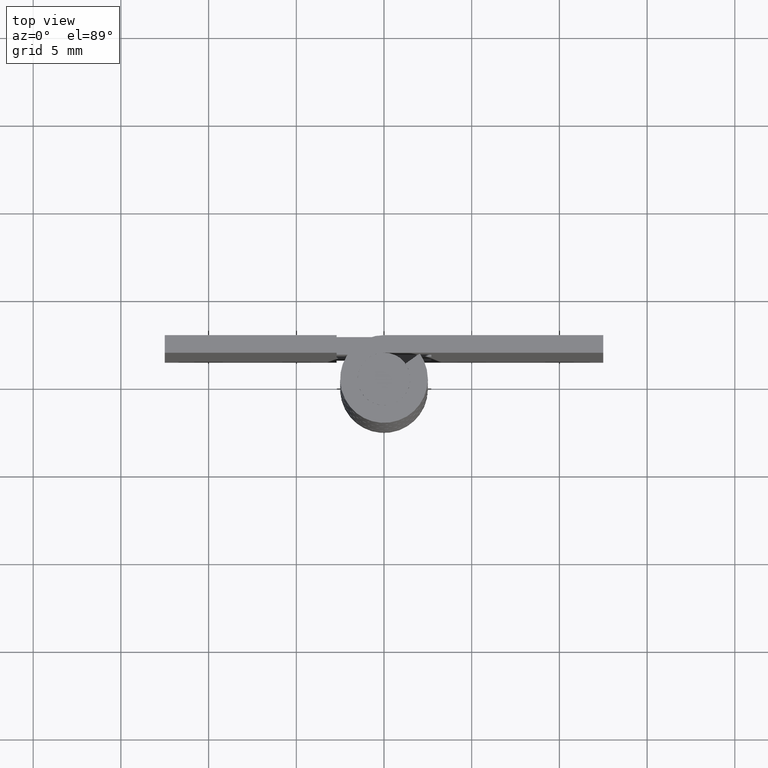
[diagram: clean part render]
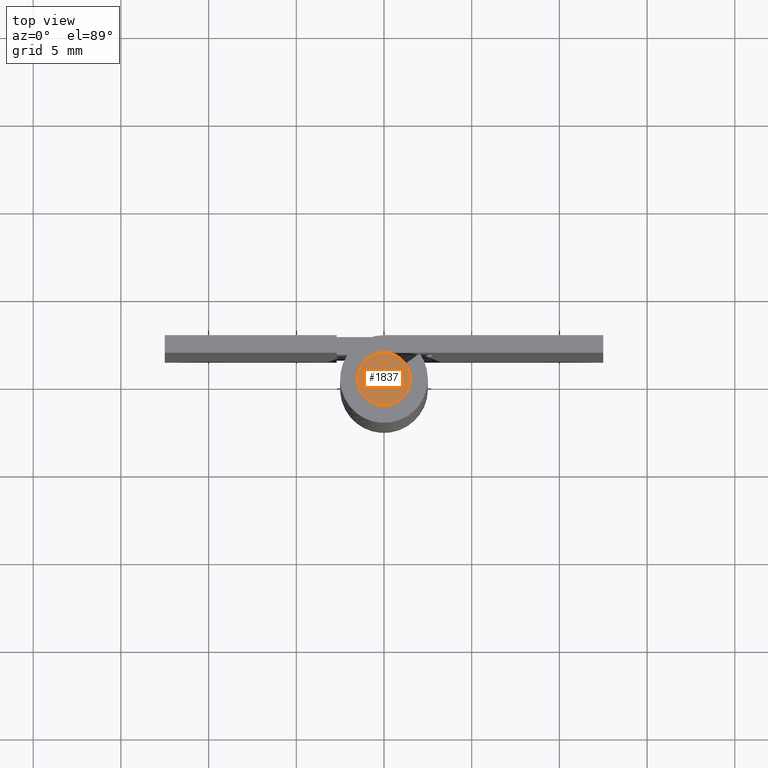
[diagram: same view with one face highlighted and labeled with its STEP entity id]
A machine part, top view. The second image highlights one B-rep face of the part: STEP entity #1837.
In plain terms, the highlighted face is a freeform B-spline surface patch.
Its self-contained STEP definition (entity closure, byte-faithful):
#1669=CARTESIAN_POINT('',(0.177051352070279,-1.489514289535379,33.0));
#1670=VERTEX_POINT('',#1669);
#1676=CARTESIAN_POINT('',(-1.500000000000000,0.0,33.0));
#1677=VERTEX_POINT('',#1676);
#1678=CARTESIAN_POINT('',(0.177051352070279,-1.489514289535380,33.0));
#1679=CARTESIAN_POINT('',(0.088836179563906,-1.500000000000000,33.0));
#1680=CARTESIAN_POINT('',(0.0,-1.500000000000000,33.0));
#1681=CARTESIAN_POINT('',(-1.500000000000000,-1.500000000000000,33.0));
#1682=CARTESIAN_POINT('',(-1.500000000000000,0.0,33.0));
#1690=(BOUNDED_CURVE()B_SPLINE_CURVE(2,(#1678,#1679,#1680,#1681,#1682),.UNSPECIFIED.,.F.,.U.)B_SPLINE_CURVE_WITH_KNOTS((3,2,3),(0.229562473496324,0.250000000000000,0.500000000000000),.UNSPECIFIED.)CURVE()GEOMETRIC_REPRESENTATION_ITEM()RATIONAL_B_SPLINE_CURVE((0.956026754150017,0.976055948311012,1.0,0.707106781186548,1.0))REPRESENTATION_ITEM(''));
#1691=EDGE_CURVE('',#1670,#1677,#1690,.T.);
#1693=CARTESIAN_POINT('',(-0.091572809398664,1.497202197626906,33.0));
#1694=VERTEX_POINT('',#1693);
#1695=CARTESIAN_POINT('',(-1.500000000000000,0.0,33.0));
#1696=CARTESIAN_POINT('',(-1.500000000000001,1.411059100176536,33.000000000000007));
#1697=CARTESIAN_POINT('',(-0.091572809398664,1.497202197626905,33.000000000000007));
#1705=(BOUNDED_CURVE()B_SPLINE_CURVE(2,(#1695,#1696,#1697),.UNSPECIFIED.,.F.,.U.)B_SPLINE_CURVE_WITH_KNOTS((3,3),(0.500000000000000,0.739332962219754),.UNSPECIFIED.)CURVE()GEOMETRIC_REPRESENTATION_ITEM()RATIONAL_B_SPLINE_CURVE((1.0,0.719603993309192,0.976072041625592))REPRESENTATION_ITEM(''));
#1706=EDGE_CURVE('',#1677,#1694,#1705,.T.);
#1780=CARTESIAN_POINT('',(1.500000000000000,0.0,33.0));
#1781=VERTEX_POINT('',#1780);
#1782=CARTESIAN_POINT('',(-0.091572809398664,1.497202197626905,33.000000000000007));
#1783=CARTESIAN_POINT('',(-0.045829145044532,1.500000000000000,33.0));
#1784=CARTESIAN_POINT('',(0.0,1.500000000000000,33.0));
#1785=CARTESIAN_POINT('',(1.500000000000000,1.500000000000000,33.0));
#1786=CARTESIAN_POINT('',(1.500000000000000,0.0,33.0));
#1794=(BOUNDED_CURVE()B_SPLINE_CURVE(2,(#1782,#1783,#1784,#1785,#1786),.UNSPECIFIED.,.F.,.U.)B_SPLINE_CURVE_WITH_KNOTS((3,2,3),(0.739332962219754,0.750000000000000,1.0),.UNSPECIFIED.)CURVE()GEOMETRIC_REPRESENTATION_ITEM()RATIONAL_B_SPLINE_CURVE((0.976072041625592,0.987502787877356,1.0,0.707106781186548,1.0))REPRESENTATION_ITEM(''));
#1795=EDGE_CURVE('',#1694,#1781,#1794,.T.);
#1797=CARTESIAN_POINT('',(1.500000000000000,0.0,33.0));
#1798=CARTESIAN_POINT('',(1.500000000000001,-1.332261788773674,33.000000000000007));
#1799=CARTESIAN_POINT('',(0.177051352070279,-1.489514289535380,33.0));
#1807=(BOUNDED_CURVE()B_SPLINE_CURVE(2,(#1797,#1798,#1799),.UNSPECIFIED.,.F.,.U.)B_SPLINE_CURVE_WITH_KNOTS((3,3),(0.0,0.229562473496324),.UNSPECIFIED.)CURVE()GEOMETRIC_REPRESENTATION_ITEM()RATIONAL_B_SPLINE_CURVE((1.0,0.731050832875536,0.956026754150017))REPRESENTATION_ITEM(''));
#1808=EDGE_CURVE('',#1781,#1670,#1807,.T.);
#1826=CARTESIAN_POINT('',(-1.649849994185418,-1.649822796803184,33.0));
#1827=CARTESIAN_POINT('',(1.649850074651688,-1.649822796803184,33.0));
#1828=CARTESIAN_POINT('',(-1.649849994185418,1.649813489537902,33.0));
#1829=CARTESIAN_POINT('',(1.649850074651688,1.649813489537902,33.0));
#1830=B_SPLINE_SURFACE_WITH_KNOTS('',1,1,((#1826,#1828),(#1827,#1829)),.UNSPECIFIED.,.F.,.F.,.U.,(2,2),(2,2),(0.0,3.299700068837106),(0.0,3.299636286341086),.UNSPECIFIED.);
#1831=ORIENTED_EDGE('',*,*,#1795,.F.);
#1832=ORIENTED_EDGE('',*,*,#1706,.F.);
#1833=ORIENTED_EDGE('',*,*,#1691,.F.);
#1834=ORIENTED_EDGE('',*,*,#1808,.F.);
#1835=EDGE_LOOP('',(#1831,#1832,#1833,#1834));
#1836=FACE_OUTER_BOUND('',#1835,.T.);
#1837=ADVANCED_FACE('',(#1836),#1830,.T.);